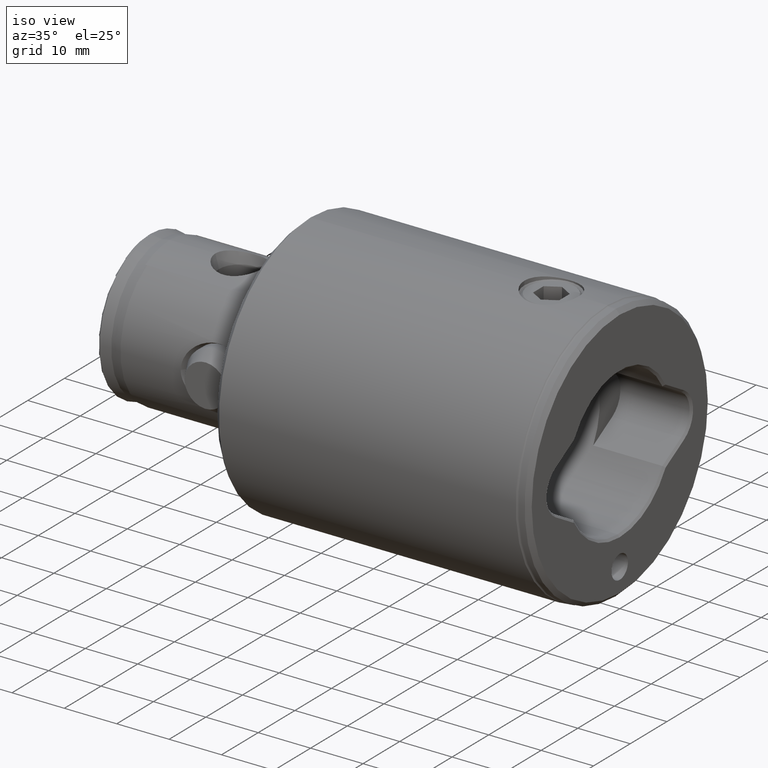
[diagram: clean part render]
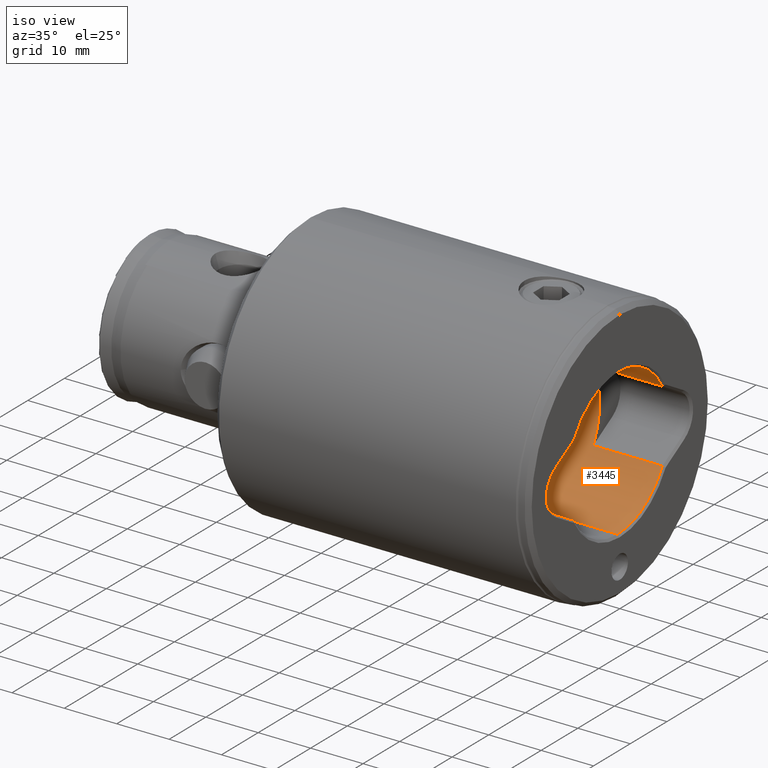
[diagram: same view with one face highlighted and labeled with its STEP entity id]
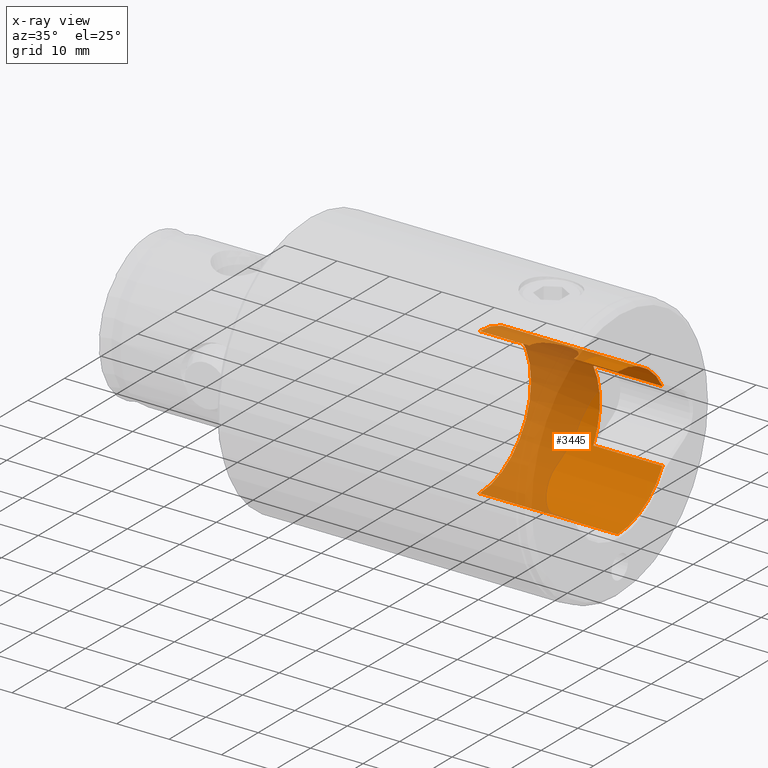
[diagram: x-ray of the same camera — body ghosted, the highlighted face saturated]
A machine part, iso view. The second image highlights one B-rep face of the part: STEP entity #3445.
The next image is the same camera in x-ray: the body ghosted, the highlighted face saturated — about 54% of this face is hidden behind the body in this view.
In plain terms, the highlighted cylindrical surface (partial cylindrical patch) has radius 14 mm, axis along (1, 0, -0).
Its self-contained STEP definition (entity closure, byte-faithful):
#19 = CARTESIAN_POINT ( 'NONE',  ( 0.0000000000000000000, 0.0000000000000000000, 0.3999999999999975800 ) ) ;
#26 = FACE_OUTER_BOUND ( 'NONE', #1799, .T. ) ;
#36 = VERTEX_POINT ( 'NONE', #1077 ) ;
#81 = EDGE_CURVE ( 'NONE', #4416, #2632, #1901, .T. ) ;
#122 = DIRECTION ( 'NONE',  ( -0.0000000000000000000, 1.300461643580481600E-016, -1.000000000000000000 ) ) ;
#125 = VECTOR ( 'NONE', #2804, 1000.000000000000000 ) ;
#136 = CARTESIAN_POINT ( 'NONE',  ( 13.71696461041719700, 2.808061401427105700, 16.25221482883305100 ) ) ;
#192 = CARTESIAN_POINT ( 'NONE',  ( 6.871987870054857300, 12.19736786006796200, 32.00000000000000000 ) ) ;
#203 = CARTESIAN_POINT ( 'NONE',  ( 13.95894271656672300, 1.105706208743230100, 8.936936729364562700 ) ) ;
#335 = CARTESIAN_POINT ( 'NONE',  ( 0.0000000000000000000, 0.0000000000000000000, 32.00000000000000000 ) ) ;
#341 = VERTEX_POINT ( 'NONE', #3772 ) ;
#378 = VERTEX_POINT ( 'NONE', #547 ) ;
#384 = DIRECTION ( 'NONE',  ( 1.000000000000000000, 0.0000000000000000000, 0.0000000000000000000 ) ) ;
#432 = DIRECTION ( 'NONE',  ( 1.000000000000000000, 1.776356839400250500E-015, 0.0000000000000000000 ) ) ;
#435 = CARTESIAN_POINT ( 'NONE',  ( -14.00000000000000000, 0.0000000000000000000, 0.3999999999999975800 ) ) ;
#489 = CARTESIAN_POINT ( 'NONE',  ( 13.93456001468782900, 1.376590847489399700, 9.019491109293628700 ) ) ;
#508 = CARTESIAN_POINT ( 'NONE',  ( 13.95867109632448900, 1.109572286799658900, 17.16214741351217700 ) ) ;
#547 = CARTESIAN_POINT ( 'NONE',  ( 6.871987870054857300, 12.19736786006796200, 13.60000000000000100 ) ) ;
#557 = CARTESIAN_POINT ( 'NONE',  ( 14.00000000000000000, 4.197627457788430000E-017, 8.800000000000006000 ) ) ;
#583 = EDGE_CURVE ( 'NONE', #2625, #2632, #3247, .T. ) ;
#626 = AXIS2_PLACEMENT_3D ( 'NONE', #978, #3488, #3179 ) ;
#636 = CARTESIAN_POINT ( 'NONE',  ( 1.729813603795636300E-015, 13.99999999999999500, 26.75000000000000400 ) ) ;
#735 = DIRECTION ( 'NONE',  ( -0.0000000000000000000, -0.0000000000000000000, 1.000000000000000000 ) ) ;
#751 = CIRCLE ( 'NONE', #626, 14.00000000000000000 ) ;
#809 = CIRCLE ( 'NONE', #4436, 14.00000000000000000 ) ;
#856 = CARTESIAN_POINT ( 'NONE',  ( 13.33936284124098400, 4.249870469563879800, 12.76896002570913600 ) ) ;
#857 = ORIENTED_EDGE ( 'NONE', *, *, #81, .T. ) ;
#868 = CARTESIAN_POINT ( 'NONE',  ( 13.75932707045883100, 2.595226361751210600, 16.42693679207102500 ) ) ;
#889 = CYLINDRICAL_SURFACE ( 'NONE', #2603, 14.00000000000000000 ) ;
#917 = CARTESIAN_POINT ( 'NONE',  ( 13.46983791753528900, 3.817814925969463100, 11.16233660120322000 ) ) ;
#978 = CARTESIAN_POINT ( 'NONE',  ( 0.0000000000000000000, 0.0000000000000000000, 13.60000000000000100 ) ) ;
#1027 = CARTESIAN_POINT ( 'NONE',  ( -14.00000000000000000, 0.0000000000000000000, 32.00000000000000000 ) ) ;
#1077 = CARTESIAN_POINT ( 'NONE',  ( 14.00000000000000000, 1.714505518806294600E-015, 26.75000000000000000 ) ) ;
#1083 = CARTESIAN_POINT ( 'NONE',  ( -14.00000000000000000, -7.703719777548943400E-031, 26.75000000000000000 ) ) ;
#1179 = VERTEX_POINT ( 'NONE', #1083 ) ;
#1181 = EDGE_CURVE ( 'NONE', #1614, #2589, #3898, .T. ) ;
#1217 = CARTESIAN_POINT ( 'NONE',  ( 13.50727800733022300, 3.684916985537473300, 15.18542141010484400 ) ) ;
#1229 = CARTESIAN_POINT ( 'NONE',  ( 14.00000000000000000, 4.197627457788430000E-017, 8.800000000000006000 ) ) ;
#1233 = CARTESIAN_POINT ( 'NONE',  ( 14.00000000000000400, 0.2784588201511377100, 17.30000000000000100 ) ) ;
#1288 = CARTESIAN_POINT ( 'NONE',  ( 13.71620799756773900, 2.811651312662463400, 9.851093981340648400 ) ) ;
#1368 = AXIS2_PLACEMENT_3D ( 'NONE', #19, #2565, #384 ) ;
#1509 = LINE ( 'NONE', #2561, #3582 ) ;
#1589 = ORIENTED_EDGE ( 'NONE', *, *, #1181, .T. ) ;
#1597 = CARTESIAN_POINT ( 'NONE',  ( 13.47005383325108800, 3.817088367172863300, 14.93960388359429600 ) ) ;
#1609 = CARTESIAN_POINT ( 'NONE',  ( 14.00000000000000000, 1.714460522538868100E-015, 17.29999999999999700 ) ) ;
#1614 = VERTEX_POINT ( 'NONE', #435 ) ;
#1628 = CARTESIAN_POINT ( 'NONE',  ( 13.34816925836030100, 4.222520894623980500, 12.49206030530896400 ) ) ;
#1664 = CARTESIAN_POINT ( 'NONE',  ( 13.75940232057409900, 2.594895949587920900, 9.672739520354889800 ) ) ;
#1674 = ORIENTED_EDGE ( 'NONE', *, *, #1825, .F. ) ;
#1767 = AXIS2_PLACEMENT_3D ( 'NONE', #3722, #2267, #4430 ) ;
#1781 = EDGE_CURVE ( 'NONE', #1179, #1614, #4284, .T. ) ;
#1797 = CARTESIAN_POINT ( 'NONE',  ( 6.871987870054857300, 12.19736786006796200, 0.3999999999999975800 ) ) ;
#1799 = EDGE_LOOP ( 'NONE', ( #1674, #2118, #4041, #2609, #1589, #4570, #3887, #4186, #857, #3285, #1997 ) ) ;
#1825 = EDGE_CURVE ( 'NONE', #36, #341, #2798, .T. ) ;
#1901 = CIRCLE ( 'NONE', #2282, 14.00000000000000000 ) ;
#1955 = CARTESIAN_POINT ( 'NONE',  ( 13.63058624653058500, 3.201072244175234600, 10.24081518803363600 ) ) ;
#1997 = ORIENTED_EDGE ( 'NONE', *, *, #3221, .T. ) ;
#2004 = CARTESIAN_POINT ( 'NONE',  ( 13.33928059233113900, 4.250128621278363100, 13.32710860291772000 ) ) ;
#2100 = B_SPLINE_CURVE_WITH_KNOTS ( 'NONE', 3,
 ( #557, #2374, #3089, #203, #489, #2716, #2700, #1664, #1288, #1955, #3427, #2315, #917, #3020, #4428, #1628, #856, #2004, #3376, #3721, #4095, #1597, #1217, #4079, #3403, #136, #868, #2679, #4127, #3389, #508, #3041, #1233, #1609 ),
 .UNSPECIFIED., .F., .F.,
 ( 4, 2, 2, 2, 2, 2, 2, 2, 2, 2, 2, 2, 2, 2, 2, 2, 4 ),
 ( 4.075814366396359700E-020, 0.0008354232858209742700, 0.001670846571641948500, 0.002506269857462922900, 0.003341693143283897100, 0.004177116429104871200, 0.005012539714925845800, 0.005847963000746819600, 0.006683386286567794200, 0.007518809572388768800, 0.008354232858209742500, 0.009189656144030717100, 0.01002507942985169200, 0.01086050271567266600, 0.01169592600149363900, 0.01253134928731461400, 0.01336677257313558800 ),
 .UNSPECIFIED. ) ;
#2118 = ORIENTED_EDGE ( 'NONE', *, *, #3910, .F. ) ;
#2138 = CARTESIAN_POINT ( 'NONE',  ( 14.00000000000000000, 1.714505518806294600E-015, 32.00000000000000000 ) ) ;
#2170 = CIRCLE ( 'NONE', #1767, 14.00000000000000000 ) ;
#2267 = DIRECTION ( 'NONE',  ( -0.0000000000000000000, 1.300461643580481600E-016, -1.000000000000000000 ) ) ;
#2282 = AXIS2_PLACEMENT_3D ( 'NONE', #3699, #2610, #432 ) ;
#2315 = CARTESIAN_POINT ( 'NONE',  ( 13.50673094286459100, 3.687001793796778900, 10.91775466133803400 ) ) ;
#2374 = CARTESIAN_POINT ( 'NONE',  ( 14.00000000000000200, 0.2826051485473328200, 8.800000000000006000 ) ) ;
#2452 = VERTEX_POINT ( 'NONE', #636 ) ;
#2499 = EDGE_CURVE ( 'NONE', #378, #4371, #751, .T. ) ;
#2537 = DIRECTION ( 'NONE',  ( 0.0000000000000000000, 0.0000000000000000000, -1.000000000000000000 ) ) ;
#2561 = CARTESIAN_POINT ( 'NONE',  ( -6.871987870054864400, 12.19736786006795800, 32.00000000000000000 ) ) ;
#2565 = DIRECTION ( 'NONE',  ( -0.0000000000000000000, -0.0000000000000000000, -1.000000000000000000 ) ) ;
#2589 = VERTEX_POINT ( 'NONE', #4442 ) ;
#2603 = AXIS2_PLACEMENT_3D ( 'NONE', #335, #3921, #2872 ) ;
#2609 = ORIENTED_EDGE ( 'NONE', *, *, #1781, .T. ) ;
#2610 = DIRECTION ( 'NONE',  ( -0.0000000000000000000, -0.0000000000000000000, -1.000000000000000000 ) ) ;
#2625 = VERTEX_POINT ( 'NONE', #1229 ) ;
#2632 = VERTEX_POINT ( 'NONE', #2695 ) ;
#2655 = CARTESIAN_POINT ( 'NONE',  ( 0.0000000000000000000, -4.368448785928343800E-015, 26.75000000000000000 ) ) ;
#2679 = CARTESIAN_POINT ( 'NONE',  ( 13.83806193757786600, 2.135959529660699500, 16.73464093963346900 ) ) ;
#2695 = CARTESIAN_POINT ( 'NONE',  ( 14.00000000000000000, 1.714505518806294600E-015, 0.3999999999999975800 ) ) ;
#2700 = CARTESIAN_POINT ( 'NONE',  ( 13.83835865342726900, 2.134119721974951000, 9.364229205601892800 ) ) ;
#2716 = CARTESIAN_POINT ( 'NONE',  ( 13.87416904609512400, 1.890607956373902400, 9.233508701077594700 ) ) ;
#2798 = LINE ( 'NONE', #2138, #3610 ) ;
#2804 = DIRECTION ( 'NONE',  ( 0.0000000000000000000, 0.0000000000000000000, -1.000000000000000000 ) ) ;
#2832 = EDGE_CURVE ( 'NONE', #1179, #2452, #809, .T. ) ;
#2872 = DIRECTION ( 'NONE',  ( -1.000000000000000000, 0.0000000000000000000, 0.0000000000000000000 ) ) ;
#3012 = EDGE_CURVE ( 'NONE', #378, #4416, #3560, .T. ) ;
#3020 = CARTESIAN_POINT ( 'NONE',  ( 13.40780785030849700, 4.030252223227785500, 11.67302834695854800 ) ) ;
#3041 = CARTESIAN_POINT ( 'NONE',  ( 13.99148065538682300, 0.5604627596324941500, 17.27217817070215500 ) ) ;
#3089 = CARTESIAN_POINT ( 'NONE',  ( 13.99145748881069000, 0.5601654427468447700, 8.827904505455160600 ) ) ;
#3103 = EDGE_CURVE ( 'NONE', #2589, #4371, #1509, .T. ) ;
#3179 = DIRECTION ( 'NONE',  ( -1.000000000000000000, -1.776356839400250500E-015, 0.0000000000000000000 ) ) ;
#3221 = EDGE_CURVE ( 'NONE', #2625, #341, #2100, .T. ) ;
#3247 = LINE ( 'NONE', #3794, #4282 ) ;
#3274 = CARTESIAN_POINT ( 'NONE',  ( -6.871987870054864400, 12.19736786006795800, 13.60000000000000100 ) ) ;
#3285 = ORIENTED_EDGE ( 'NONE', *, *, #583, .F. ) ;
#3356 = VECTOR ( 'NONE', #4292, 1000.000000000000000 ) ;
#3366 = DIRECTION ( 'NONE',  ( 0.0000000000000000000, -1.000000000000000000, -2.478176394252581600E-016 ) ) ;
#3376 = CARTESIAN_POINT ( 'NONE',  ( 13.34831267613811800, 4.222064557909794400, 13.61064981385980700 ) ) ;
#3389 = CARTESIAN_POINT ( 'NONE',  ( 13.93472664564964700, 1.374738887935363700, 17.08107107330497200 ) ) ;
#3403 = CARTESIAN_POINT ( 'NONE',  ( 13.63078026044288300, 3.200336927441110600, 15.86020145097105600 ) ) ;
#3427 = CARTESIAN_POINT ( 'NONE',  ( 13.58771172604848900, 3.376366840288669300, 10.45373357077794600 ) ) ;
#3445 = ADVANCED_FACE ( 'NONE', ( #26 ), #889, .F. ) ;
#3488 = DIRECTION ( 'NONE',  ( -0.0000000000000000000, -0.0000000000000000000, 1.000000000000000000 ) ) ;
#3560 = LINE ( 'NONE', #192, #125 ) ;
#3582 = VECTOR ( 'NONE', #735, 1000.000000000000000 ) ;
#3610 = VECTOR ( 'NONE', #2537, 1000.000000000000000 ) ;
#3632 = DIRECTION ( 'NONE',  ( 0.0000000000000000000, 0.0000000000000000000, -1.000000000000000000 ) ) ;
#3699 = CARTESIAN_POINT ( 'NONE',  ( 0.0000000000000000000, 0.0000000000000000000, 0.3999999999999975800 ) ) ;
#3721 = CARTESIAN_POINT ( 'NONE',  ( 13.38241085110049200, 4.112707167238549600, 14.15715721624515500 ) ) ;
#3722 = CARTESIAN_POINT ( 'NONE',  ( 0.0000000000000000000, -4.368448785928343800E-015, 26.75000000000000000 ) ) ;
#3772 = CARTESIAN_POINT ( 'NONE',  ( 14.00000000000000000, 1.714460522538868100E-015, 17.29999999999999700 ) ) ;
#3794 = CARTESIAN_POINT ( 'NONE',  ( 14.00000000000000000, 1.714505518806294600E-015, 32.00000000000000000 ) ) ;
#3887 = ORIENTED_EDGE ( 'NONE', *, *, #2499, .F. ) ;
#3898 = CIRCLE ( 'NONE', #1368, 14.00000000000000000 ) ;
#3910 = EDGE_CURVE ( 'NONE', #2452, #36, #2170, .T. ) ;
#3921 = DIRECTION ( 'NONE',  ( 0.0000000000000000000, 0.0000000000000000000, -1.000000000000000000 ) ) ;
#4041 = ORIENTED_EDGE ( 'NONE', *, *, #2832, .F. ) ;
#4079 = CARTESIAN_POINT ( 'NONE',  ( 13.58731845473999100, 3.377861685606917700, 15.64397151525330200 ) ) ;
#4095 = CARTESIAN_POINT ( 'NONE',  ( 13.40733778063750000, 4.031849142686152900, 14.42293806499855600 ) ) ;
#4127 = CARTESIAN_POINT ( 'NONE',  ( 13.87463958205729700, 1.887032105447299200, 16.86818685255829600 ) ) ;
#4186 = ORIENTED_EDGE ( 'NONE', *, *, #3012, .T. ) ;
#4282 = VECTOR ( 'NONE', #3632, 1000.000000000000000 ) ;
#4284 = LINE ( 'NONE', #1027, #3356 ) ;
#4292 = DIRECTION ( 'NONE',  ( 0.0000000000000000000, 0.0000000000000000000, -1.000000000000000000 ) ) ;
#4371 = VERTEX_POINT ( 'NONE', #3274 ) ;
#4416 = VERTEX_POINT ( 'NONE', #1797 ) ;
#4428 = CARTESIAN_POINT ( 'NONE',  ( 13.38239826163324300, 4.112751150070556200, 11.94263493551523000 ) ) ;
#4430 = DIRECTION ( 'NONE',  ( -8.881784197001252300E-016, -1.000000000000000000, -2.478176394252581600E-016 ) ) ;
#4436 = AXIS2_PLACEMENT_3D ( 'NONE', #2655, #122, #3366 ) ;
#4442 = CARTESIAN_POINT ( 'NONE',  ( -6.871987870054864400, 12.19736786006795800, 0.3999999999999975800 ) ) ;
#4570 = ORIENTED_EDGE ( 'NONE', *, *, #3103, .T. ) ;